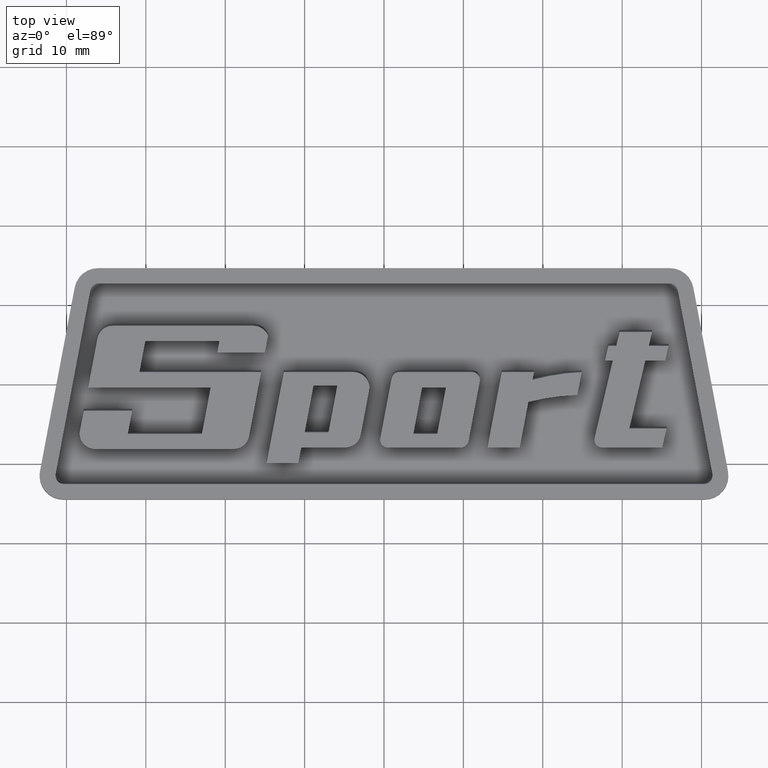
[diagram: clean part render]
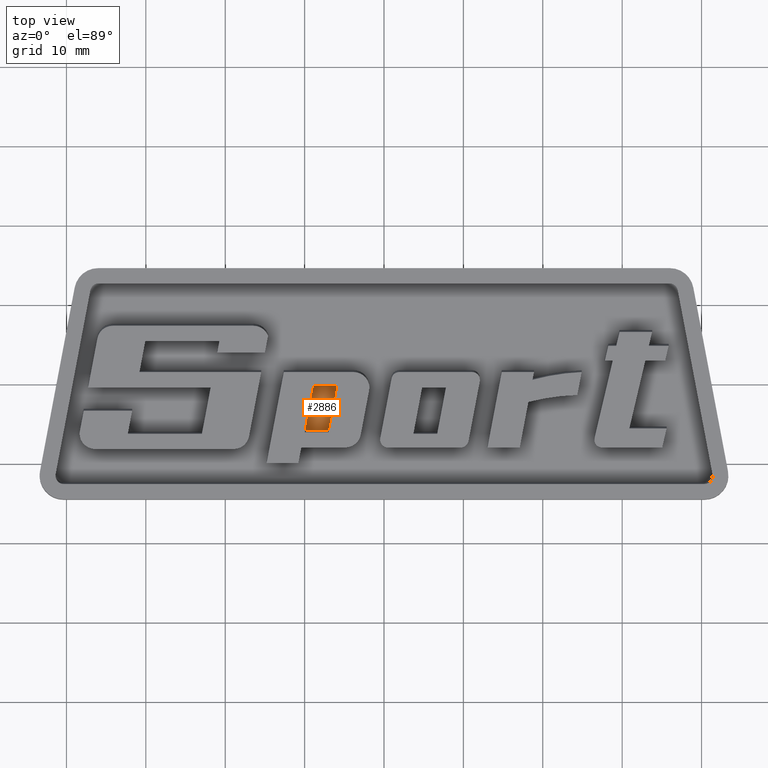
[diagram: same view with one face highlighted and labeled with its STEP entity id]
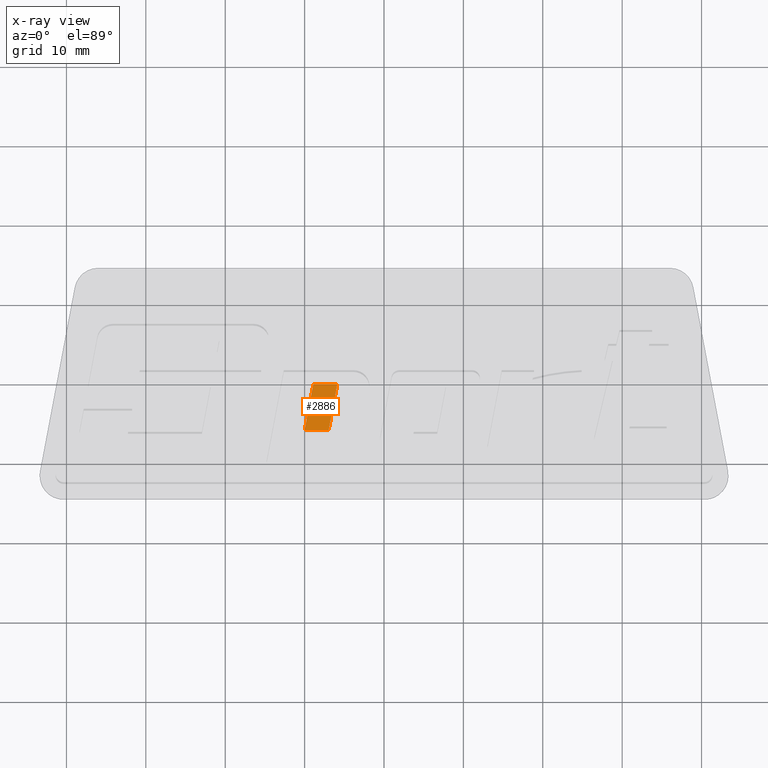
[diagram: x-ray of the same camera — body ghosted, the highlighted face saturated]
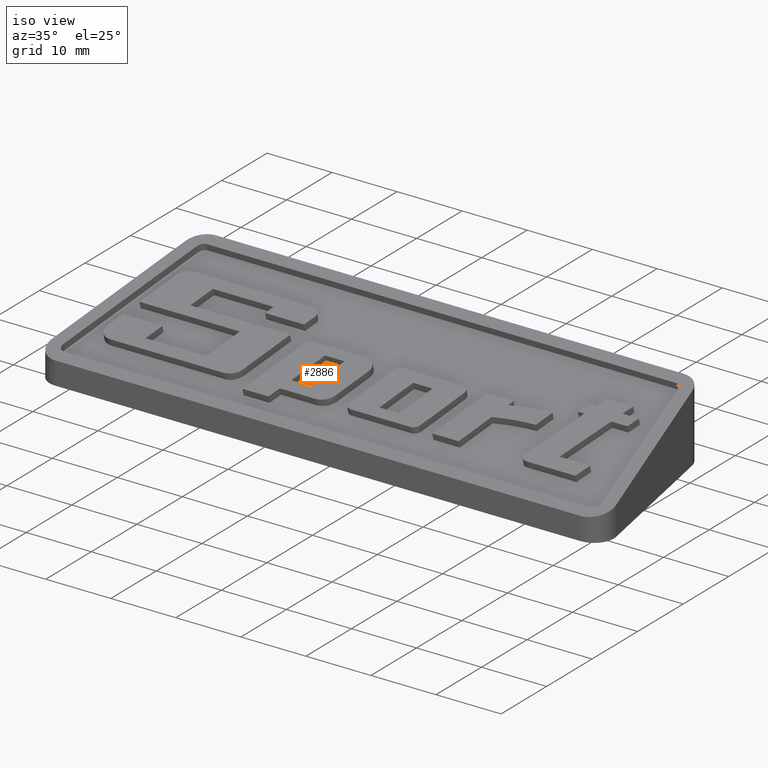
[diagram: same view with one face highlighted and labeled with its STEP entity id]
A machine part, top view. The second image highlights one B-rep face of the part: STEP entity #2886.
The next image is the same camera in x-ray: the body ghosted, the highlighted face saturated — about 0% of this face is hidden behind the body in this view.
A second angle (iso view) of the same face is appended — the face is thin or edge-on in the first view.
In plain terms, the highlighted planar face has unit normal (-0, -0.2504, 0.9681).
Its self-contained STEP definition (entity closure, byte-faithful):
#1646=CARTESIAN_POINT('',(-8.888048189472894,-0.020462417798315,6.211806905690079));
#1647=VERTEX_POINT('',#1646);
#1654=CARTESIAN_POINT('',(-5.888048189472892,-0.020462417798315,6.211806905690079));
#1655=VERTEX_POINT('',#1654);
#1656=CARTESIAN_POINT('',(-5.888048189472892,-0.020462417798315,6.211806905690079));
#1657=DIRECTION('',(-1.0,0.0,0.0));
#1658=VECTOR('',#1657,3.000000000000002);
#1659=LINE('',#1656,#1658);
#1660=EDGE_CURVE('',#1655,#1647,#1659,.T.);
#1685=CARTESIAN_POINT('',(-6.989732606134367,-5.829343887467923,4.709509973878975));
#1686=VERTEX_POINT('',#1685);
#1687=CARTESIAN_POINT('',(-6.989732606134367,-5.829343887467923,4.709509973878975));
#1688=DIRECTION('',(0.180595003408357,0.952228199789522,0.246265913738669));
#1689=VECTOR('',#1688,6.100303972255377);
#1690=LINE('',#1687,#1689);
#1691=EDGE_CURVE('',#1686,#1655,#1690,.T.);
#1716=CARTESIAN_POINT('',(-9.989732606134369,-5.829343887467923,4.709509973878975));
#1717=VERTEX_POINT('',#1716);
#1718=CARTESIAN_POINT('',(-9.989732606134369,-5.829343887467924,4.709509973878975));
#1719=DIRECTION('',(1.0,0.0,0.0));
#1720=VECTOR('',#1719,3.000000000000003);
#1721=LINE('',#1718,#1720);
#1722=EDGE_CURVE('',#1717,#1686,#1721,.T.);
#1745=CARTESIAN_POINT('',(-8.888048189472896,-0.020462417798315,6.211806905690079));
#1746=DIRECTION('',(-0.180595003408357,-0.952228199789522,-0.246265913738669));
#1747=VECTOR('',#1746,6.100303972255377);
#1748=LINE('',#1745,#1747);
#1749=EDGE_CURVE('',#1647,#1717,#1748,.T.);
#2875=CARTESIAN_POINT('',(-1.202906E-014,-0.276969190969460,6.145468947111334));
#2876=DIRECTION('',(-5.834002E-018,-0.250382821968517,0.968146911611601));
#2877=DIRECTION('',(1.0,0.0,0.0));
#2878=AXIS2_PLACEMENT_3D('',#2875,#2876,#2877);
#2879=PLANE('',#2878);
#2880=ORIENTED_EDGE('',*,*,#1660,.T.);
#2881=ORIENTED_EDGE('',*,*,#1749,.T.);
#2882=ORIENTED_EDGE('',*,*,#1722,.T.);
#2883=ORIENTED_EDGE('',*,*,#1691,.T.);
#2884=EDGE_LOOP('',(#2880,#2881,#2882,#2883));
#2885=FACE_OUTER_BOUND('',#2884,.T.);
#2886=ADVANCED_FACE('',(#2885),#2879,.T.);